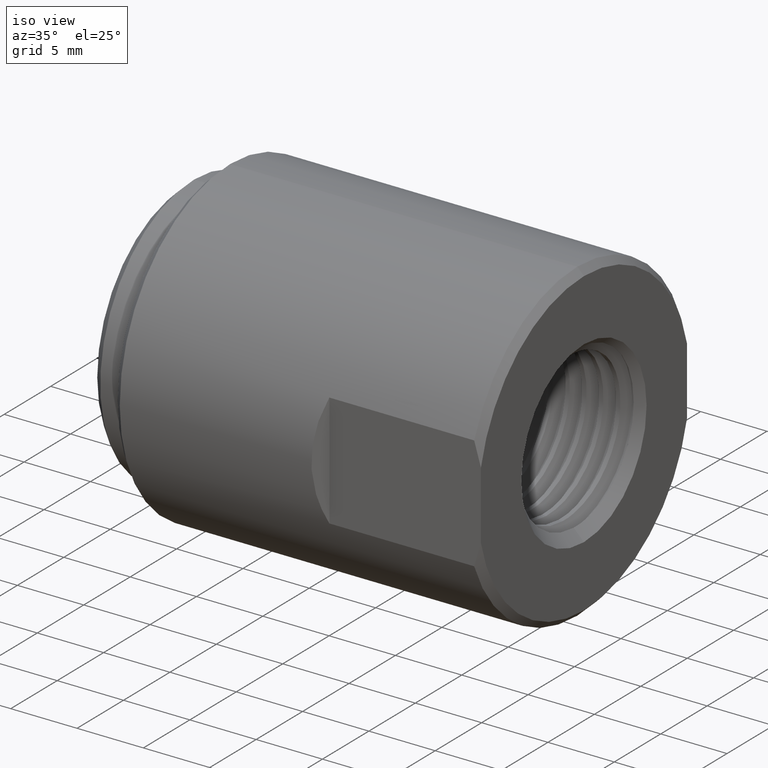
[diagram: clean part render]
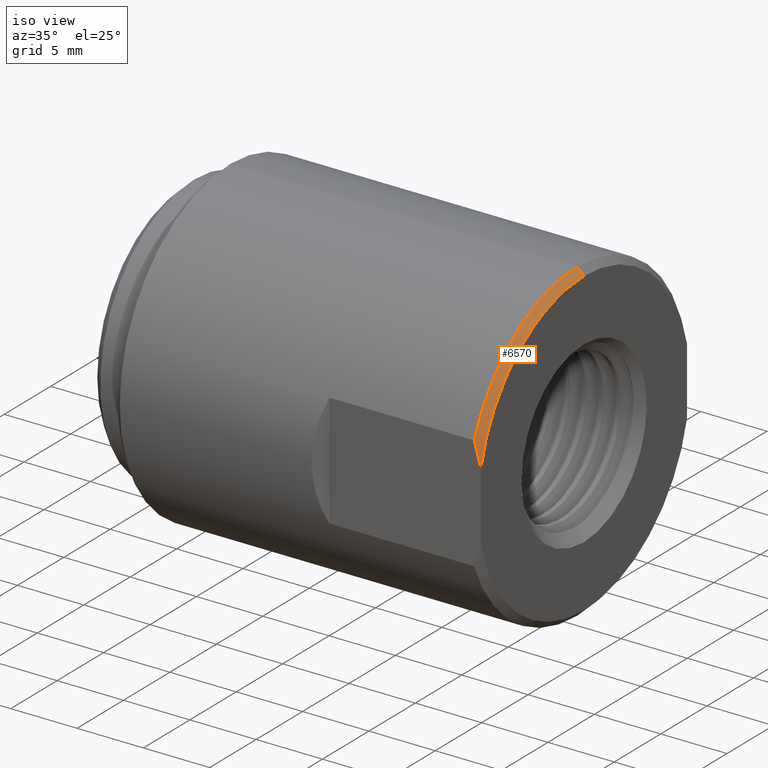
[diagram: same view with one face highlighted and labeled with its STEP entity id]
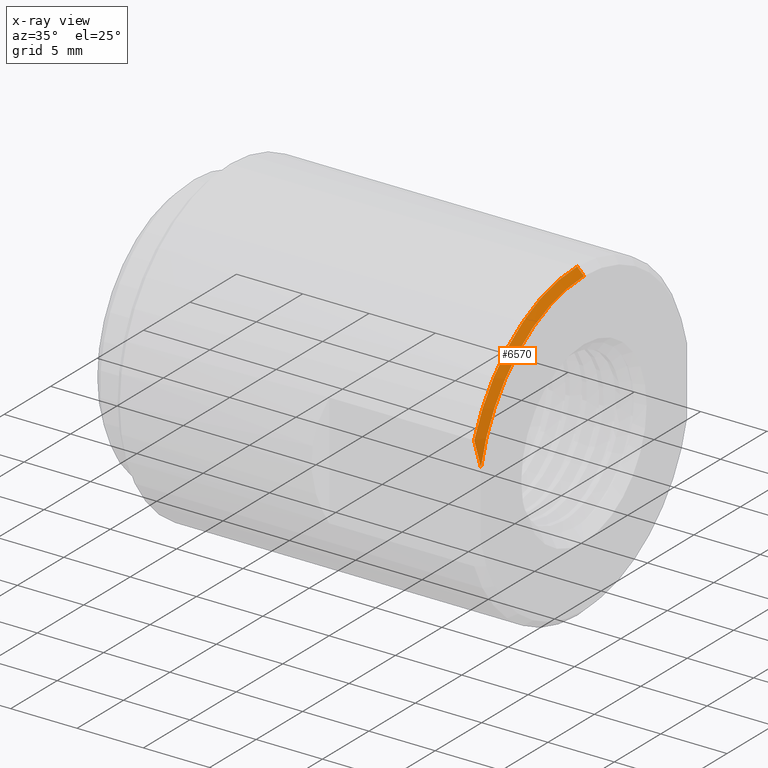
[diagram: x-ray of the same camera — body ghosted, the highlighted face saturated]
A machine part, iso view. The second image highlights one B-rep face of the part: STEP entity #6570.
The next image is the same camera in x-ray: the body ghosted, the highlighted face saturated — about 0% of this face is hidden behind the body in this view.
In plain terms, the highlighted conical surface has half-angle 45 deg.
Its self-contained STEP definition (entity closure, byte-faithful):
#368 = CARTESIAN_POINT ( 'NONE',  ( 0.8544999999999998153, 0.0000000000000000000, 0.4682499999999999996 ) ) ;
#1122 = DIRECTION ( 'NONE',  ( 0.0000000000000000000, 0.0000000000000000000, 1.000000000000000000 ) ) ;
#1312 = CONICAL_SURFACE ( 'NONE', #7968, 0.4682499999999999996, 0.7853981633974466137 ) ;
#1362 = CARTESIAN_POINT ( 'NONE',  ( 0.8544999999999998153, 0.0000000000000000000, 0.0000000000000000000 ) ) ;
#1619 = DIRECTION ( 'NONE',  ( -1.000000000000000000, -0.0000000000000000000, -0.0000000000000000000 ) ) ;
#2151 = CIRCLE ( 'NONE', #5374, 0.4682499999999999996 ) ;
#2697 = AXIS2_PLACEMENT_3D ( 'NONE', #4351, #1619, #5292 ) ;
#3624 = EDGE_CURVE ( 'NONE', #6610, #8418, #6605, .T. ) ;
#3788 = CARTESIAN_POINT ( 'NONE',  ( 0.8744999999999999440, -0.4367499999999999716, 0.1008835962879991582 ) ) ;
#3843 = CARTESIAN_POINT ( 'NONE',  ( 0.8693122336957028740, -0.4367499999999999716, 0.1239340854801530278 ) ) ;
#4265 = ORIENTED_EDGE ( 'NONE', *, *, #4438, .F. ) ;
#4351 = CARTESIAN_POINT ( 'NONE',  ( 0.8744999999999999440, 0.0000000000000000000, 0.0000000000000000000 ) ) ;
#4438 = EDGE_CURVE ( 'NONE', #10910, #10477, #7126, .T. ) ;
#4652 = CARTESIAN_POINT ( 'NONE',  ( 0.8544999999999998153, 0.0000000000000000000, 0.0000000000000000000 ) ) ;
#5044 = CARTESIAN_POINT ( 'NONE',  ( 0.8744999999999999440, 0.0000000000000000000, 0.4482499999999999818 ) ) ;
#5048 = EDGE_LOOP ( 'NONE', ( #10858, #9447, #11668, #4265 ) ) ;
#5292 = DIRECTION ( 'NONE',  ( 0.0000000000000000000, 0.0000000000000000000, 1.000000000000000000 ) ) ;
#5374 = AXIS2_PLACEMENT_3D ( 'NONE', #1362, #11271, #1122 ) ;
#6355 = CARTESIAN_POINT ( 'NONE',  ( 0.8744999999999999440, -0.4367499999999999716, 0.1008835962879991582 ) ) ;
#6415 = DIRECTION ( 'NONE',  ( -1.000000000000000000, -0.0000000000000000000, -0.0000000000000000000 ) ) ;
#6570 = ADVANCED_FACE ( 'NONE', ( #7304 ), #1312, .T. ) ;
#6605 = LINE ( 'NONE', #368, #7267 ) ;
#6610 = VERTEX_POINT ( 'NONE', #5044 ) ;
#7126 = B_SPLINE_CURVE_WITH_KNOTS ( 'NONE', 3,
 ( #3788, #3843, #7440, #10388 ),
 .UNSPECIFIED., .F., .F.,
 ( 4, 4 ),
 ( 0.03118282124195215568, 0.03298364478054569005 ),
 .UNSPECIFIED. ) ;
#7267 = VECTOR ( 'NONE', #8394, 39.37007874015748854 ) ;
#7304 = FACE_OUTER_BOUND ( 'NONE', #5048, .T. ) ;
#7426 = CARTESIAN_POINT ( 'NONE',  ( 0.8544999999999998153, 0.0000000000000000000, 0.4682499999999999996 ) ) ;
#7440 = CARTESIAN_POINT ( 'NONE',  ( 0.8625353550136163339, -0.4367499999999999716, 0.1465571215344366462 ) ) ;
#7530 = EDGE_CURVE ( 'NONE', #10910, #6610, #8367, .T. ) ;
#7968 = AXIS2_PLACEMENT_3D ( 'NONE', #4652, #6415, #10036 ) ;
#8367 = CIRCLE ( 'NONE', #2697, 0.4482499999999999818 ) ;
#8394 = DIRECTION ( 'NONE',  ( -0.7071067811865486830, 0.0000000000000000000, 0.7071067811865462405 ) ) ;
#8418 = VERTEX_POINT ( 'NONE', #7426 ) ;
#9072 = CARTESIAN_POINT ( 'NONE',  ( 0.8544999999999998153, -0.4367499999999999716, 0.1688416417830625460 ) ) ;
#9447 = ORIENTED_EDGE ( 'NONE', *, *, #3624, .T. ) ;
#10036 = DIRECTION ( 'NONE',  ( 0.0000000000000000000, 0.0000000000000000000, 1.000000000000000000 ) ) ;
#10388 = CARTESIAN_POINT ( 'NONE',  ( 0.8544999999999998153, -0.4367499999999999716, 0.1688416417830625460 ) ) ;
#10477 = VERTEX_POINT ( 'NONE', #9072 ) ;
#10858 = ORIENTED_EDGE ( 'NONE', *, *, #7530, .T. ) ;
#10910 = VERTEX_POINT ( 'NONE', #6355 ) ;
#11023 = EDGE_CURVE ( 'NONE', #10477, #8418, #2151, .T. ) ;
#11271 = DIRECTION ( 'NONE',  ( -1.000000000000000000, -0.0000000000000000000, -0.0000000000000000000 ) ) ;
#11668 = ORIENTED_EDGE ( 'NONE', *, *, #11023, .F. ) ;